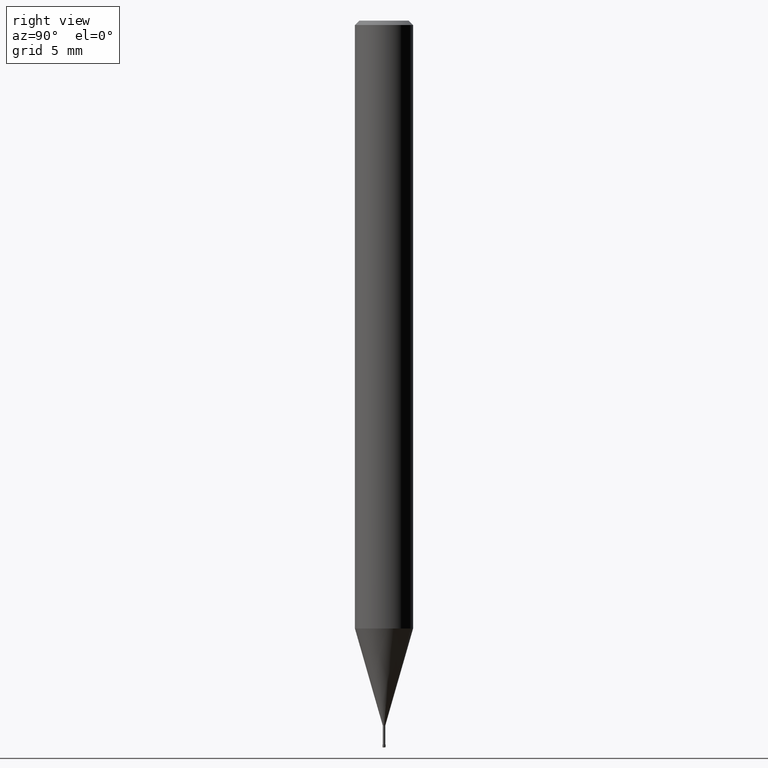
[diagram: clean part render]
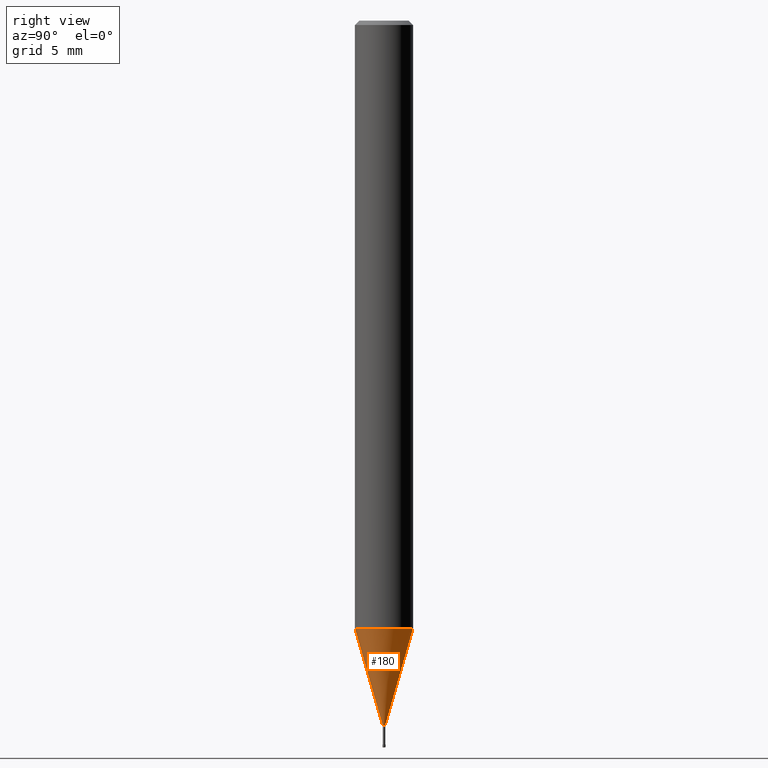
[diagram: same view with one face highlighted and labeled with its STEP entity id]
A machine part, right view. The second image highlights one B-rep face of the part: STEP entity #180.
In plain terms, the highlighted conical surface has half-angle 16.001 deg.
Its self-contained STEP definition (entity closure, byte-faithful):
#106=EDGE_CURVE('',#208,#222,#260,.T.);
#146=VERTEX_POINT('',#308);
#180=ADVANCED_FACE('',(#346),#347,.T.);
#188=EDGE_CURVE('',#208,#232,#357,.T.);
#208=VERTEX_POINT('',#378);
#214=EDGE_CURVE('',#222,#146,#384,.T.);
#222=VERTEX_POINT('',#393);
#226=EDGE_CURVE('',#146,#232,#397,.T.);
#232=VERTEX_POINT('',#403);
#260=LINE('',#426,#427);
#308=CARTESIAN_POINT('',(1.04030309757211E-017,-0.08495,-48.5));
#346=FACE_OUTER_BOUND('',#530,.T.);
#347=CONICAL_SURFACE('',#531,1.04245,0.279268497676986);
#357=CIRCLE('',#543,1.99995);
#378=CARTESIAN_POINT('',(0.0,1.99995,-41.822));
#384=CIRCLE('',#580,0.08495);
#393=CARTESIAN_POINT('',(0.0,0.08495,-48.5));
#397=LINE('',#596,#597);
#403=CARTESIAN_POINT('',(2.44915147732706E-016,-1.99995,-41.822));
#426=CARTESIAN_POINT('',(-1.27659089354214E-016,1.04245,-45.161));
#427=VECTOR('',#620,1.0);
#530=EDGE_LOOP('',(#734,#735,#736,#737));
#531=AXIS2_PLACEMENT_3D('',#738,#739,#740);
#543=AXIS2_PLACEMENT_3D('',#758,#759,#760);
#580=AXIS2_PLACEMENT_3D('',#785,#786,#787);
#596=CARTESIAN_POINT('',(1.27659089354214E-016,-1.04245,-45.161));
#597=VECTOR('',#802,1.0);
#620=DIRECTION('',(3.37565876916665E-017,-0.275652560402792,-0.961257335963365));
#734=ORIENTED_EDGE('',*,*,#106,.F.);
#735=ORIENTED_EDGE('',*,*,#188,.T.);
#736=ORIENTED_EDGE('',*,*,#226,.F.);
#737=ORIENTED_EDGE('',*,*,#214,.F.);
#738=CARTESIAN_POINT('',(0.0,0.0,-45.161));
#739=DIRECTION('',(-0.0,-0.0,1.0));
#740=DIRECTION('',(0.0,1.0,0.0));
#758=CARTESIAN_POINT('',(0.0,0.0,-41.822));
#759=DIRECTION('',(0.0,0.0,-1.0));
#760=DIRECTION('',(0.0,1.0,0.0));
#785=CARTESIAN_POINT('',(0.0,0.0,-48.5));
#786=DIRECTION('',(0.0,0.0,-1.0));
#787=DIRECTION('',(0.0,1.0,0.0));
#802=DIRECTION('',(3.37565876916665E-017,-0.275652560402792,0.961257335963365));